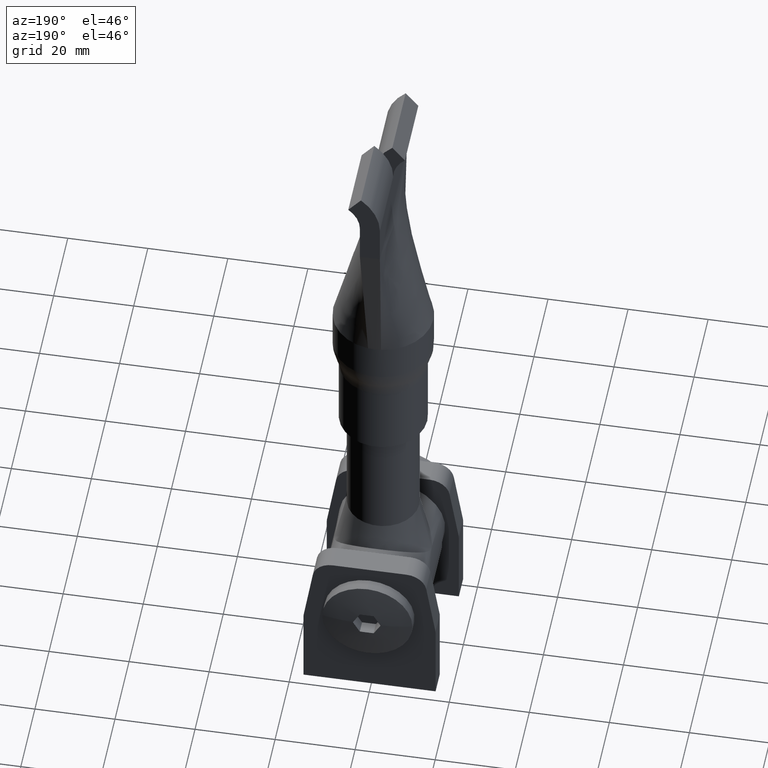
[diagram: clean part render]
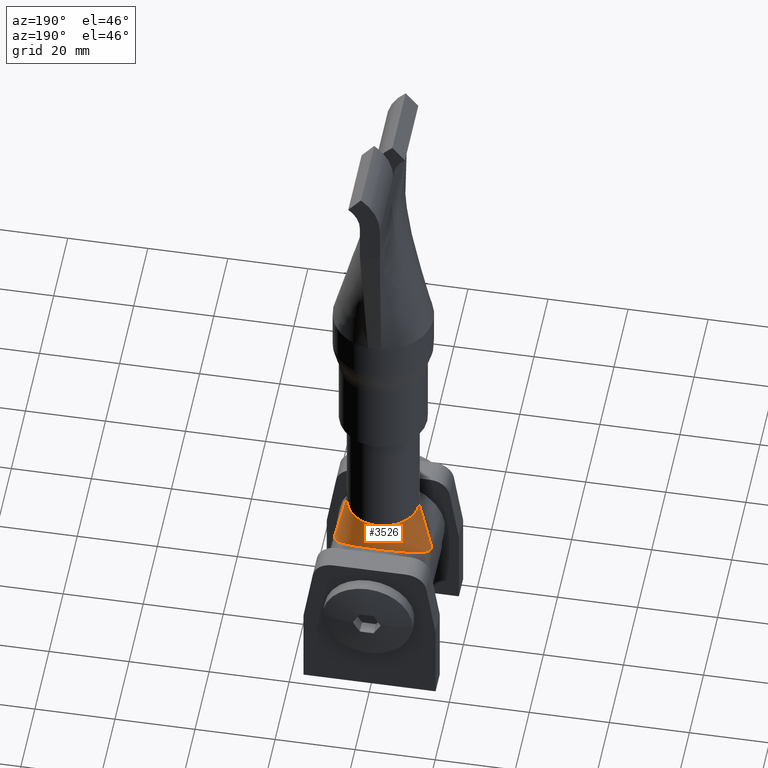
[diagram: same view with one face highlighted and labeled with its STEP entity id]
A machine part, auxiliary view. The second image highlights one B-rep face of the part: STEP entity #3526.
In plain terms, the highlighted conical surface has half-angle 12 deg.
Its self-contained STEP definition (entity closure, byte-faithful):
#330 = DIRECTION ( 'NONE',  ( -0.2079116908177593100, 0.0000000000000000000, -0.9781476007338055800 ) ) ;
#425 = CARTESIAN_POINT ( 'NONE',  ( 1.622657007580528900E-015, 10.43475679127264800, 13.25000000000000200 ) ) ;
#528 = CARTESIAN_POINT ( 'NONE',  ( 3.184539599339078400, 10.03008908591637800, 12.86769795924052000 ) ) ;
#695 = VECTOR ( 'NONE', #330, 1000.000000000000100 ) ;
#742 = CARTESIAN_POINT ( 'NONE',  ( -11.06446719328638700, 3.819138791536556900, 7.295314102514105900 ) ) ;
#1014 = CARTESIAN_POINT ( 'NONE',  ( -4.319565493271661600, 9.673706694231247700, 12.53190537982063200 ) ) ;
#1095 = CARTESIAN_POINT ( 'NONE',  ( 10.20373529351817700, 5.236426510614443900, 8.475830772971216100 ) ) ;
#1224 = CARTESIAN_POINT ( 'NONE',  ( 12.03002631820166400, 1.006849898841623700, 5.554056065950546500 ) ) ;
#1291 = CARTESIAN_POINT ( 'NONE',  ( 11.61282523603928900, 2.595191383297391000, 6.384402714709915800 ) ) ;
#1346 = CARTESIAN_POINT ( 'NONE',  ( -11.21512296835490500, 3.521800369672998700, 7.060842358509260600 ) ) ;
#1517 = VERTEX_POINT ( 'NONE', #6536 ) ;
#1601 = EDGE_CURVE ( 'NONE', #11794, #4962, #12392, .T. ) ;
#1610 = EDGE_CURVE ( 'NONE', #1517, #11786, #17721, .T. ) ;
#1688 = ORIENTED_EDGE ( 'NONE', *, *, #1610, .F. ) ;
#2273 = CARTESIAN_POINT ( 'NONE',  ( 0.8230408785925850100, 10.43475679127264400, 13.24999999999999600 ) ) ;
#2620 = CARTESIAN_POINT ( 'NONE',  ( -7.297235375127309400, 8.123185066940003200, 11.08257604455888800 ) ) ;
#2700 = CARTESIAN_POINT ( 'NONE',  ( 8.890537647187622700, 6.777204848315213900, 9.847001221272721600 ) ) ;
#2845 = ORIENTED_EDGE ( 'NONE', *, *, #11540, .T. ) ;
#2910 = CARTESIAN_POINT ( 'NONE',  ( 9.357436796250286900, 6.285408559409213500, 9.401824175999864900 ) ) ;
#3426 = B_SPLINE_CURVE_WITH_KNOTS ( 'NONE', 3,
 ( #8949, #10408, #7130, #11939, #20162, #16811, #1014, #12147, #16877, #8676, #19890, #2620, #10278, #18486, #8882, #12081, #13771, #742, #1346, #10610, #6090, #9020, #12354, #9296, #17081, #18826, #7488, #15554 ),
 .UNSPECIFIED., .F., .F.,
 ( 4, 2, 2, 2, 2, 2, 2, 2, 2, 2, 2, 2, 2, 4 ),
 ( 0.05222592864754109500, 0.05466654568456969600, 0.05588685420308399400, 0.05710716272159829800, 0.05832747124011258800, 0.05954777975862689300, 0.06198839679565548700, 0.06442901383268408200, 0.06686963086971267600, 0.06808993938822696700, 0.06931024790674125700, 0.07053055642525556100, 0.07114071068451270600, 0.07175086494376985100 ),
 .UNSPECIFIED. ) ;
#3526 = ADVANCED_FACE ( 'NONE', ( #5614 ), #10094, .T. ) ;
#3672 = CARTESIAN_POINT ( 'NONE',  ( 9.000000000000000000, 1.102182119232617700E-015, 19.99999999999999600 ) ) ;
#3757 = CARTESIAN_POINT ( 'NONE',  ( 0.0000000000000000000, 0.0000000000000000000, 19.99999999999999600 ) ) ;
#4560 = CARTESIAN_POINT ( 'NONE',  ( -12.10664305115619000, 3.786254666022218900E-021, 5.384393562128570600 ) ) ;
#4799 = CARTESIAN_POINT ( 'NONE',  ( 5.382153336248416400, 9.247686203966095400, 12.13151881884424700 ) ) ;
#4962 = VERTEX_POINT ( 'NONE', #19730 ) ;
#5064 = B_SPLINE_CURVE_WITH_KNOTS ( 'NONE', 3,
 ( #20384, #9240, #18643, #15497, #1224, #9308, #20244, #1291, #18707, #10623, #14001, #10760, #1095, #2910, #2700, #17091, #9103, #19041, #4799, #18199, #16606, #528, #11805, #13257, #2273, #15060 ),
 .UNSPECIFIED., .F., .F.,
 ( 4, 2, 2, 2, 2, 2, 2, 2, 2, 2, 2, 2, 4 ),
 ( 0.03266425480130214600, 0.03327555710899711400, 0.03388685941669208200, 0.03510946403208201800, 0.03633206864747195300, 0.03755467326286188900, 0.03999988249364176000, 0.04244509172442162400, 0.04489030095520149500, 0.04733551018598136700, 0.04855811480137129500, 0.04978071941676123100, 0.05222592864754109500 ),
 .UNSPECIFIED. ) ;
#5137 = CARTESIAN_POINT ( 'NONE',  ( -9.000000000000000000, 0.0000000000000000000, 19.99999999999999600 ) ) ;
#5281 = DIRECTION ( 'NONE',  ( 0.2079116908177593100, 2.546183866652831100E-017, -0.9781476007338055800 ) ) ;
#5614 = FACE_OUTER_BOUND ( 'NONE', #15380, .T. ) ;
#6090 = CARTESIAN_POINT ( 'NONE',  ( -11.61655651773590700, 2.584838584890881000, 6.377533033917744700 ) ) ;
#6244 = AXIS2_PLACEMENT_3D ( 'NONE', #18279, #18417, #15349 ) ;
#6536 = CARTESIAN_POINT ( 'NONE',  ( -9.000000000000000000, 0.0000000000000000000, 19.99999999999999600 ) ) ;
#6951 = DIRECTION ( 'NONE',  ( 0.0000000000000000000, 0.0000000000000000000, -1.000000000000000000 ) ) ;
#7130 = CARTESIAN_POINT ( 'NONE',  ( -1.627427394574665100, 10.35436528618807600, 13.17390667386182700 ) ) ;
#7204 = EDGE_CURVE ( 'NONE', #11794, #1517, #9879, .T. ) ;
#7488 = CARTESIAN_POINT ( 'NONE',  ( -12.10664305115619400, 0.2041607178623782400, 5.384393562128573200 ) ) ;
#8050 = ORIENTED_EDGE ( 'NONE', *, *, #1601, .T. ) ;
#8676 = CARTESIAN_POINT ( 'NONE',  ( -6.047553059863945500, 8.888231756624463700, 11.79523974101253900 ) ) ;
#8882 = CARTESIAN_POINT ( 'NONE',  ( -9.366277035828115800, 6.275266810331221900, 9.392762597439320500 ) ) ;
#8949 = CARTESIAN_POINT ( 'NONE',  ( 1.622657007580528900E-015, 10.43475679127264800, 13.25000000000000200 ) ) ;
#9020 = CARTESIAN_POINT ( 'NONE',  ( -11.83461110167775000, 1.915977937054852400, 5.963161326051017700 ) ) ;
#9103 = CARTESIAN_POINT ( 'NONE',  ( 7.295562395751274700, 8.124911034194632000, 11.08416145667337300 ) ) ;
#9240 = CARTESIAN_POINT ( 'NONE',  ( 12.10664305115619400, 0.2070309658816545700, 5.384393562128569700 ) ) ;
#9296 = CARTESIAN_POINT ( 'NONE',  ( -12.03089942303414300, 1.001060367101145100, 5.552152774326420300 ) ) ;
#9308 = CARTESIAN_POINT ( 'NONE',  ( 11.92673454348287300, 1.571552621414711700, 5.774235112175426300 ) ) ;
#9799 = AXIS2_PLACEMENT_3D ( 'NONE', #3757, #6951, #14937 ) ;
#9879 = CIRCLE ( 'NONE', #6244, 9.000000000000000000 ) ;
#10090 = ORIENTED_EDGE ( 'NONE', *, *, #13794, .T. ) ;
#10094 = CONICAL_SURFACE ( 'NONE', #9799, 9.000000000000000000, 0.2094395102393195000 ) ;
#10183 = VECTOR ( 'NONE', #5281, 1000.000000000000100 ) ;
#10278 = CARTESIAN_POINT ( 'NONE',  ( -7.859814488633109200, 7.696830599005056500, 10.68787478312199100 ) ) ;
#10408 = CARTESIAN_POINT ( 'NONE',  ( -0.8214951772545705500, 10.43475679127265100, 13.25000000000000200 ) ) ;
#10610 = CARTESIAN_POINT ( 'NONE',  ( -11.49175061079786400, 2.903089775996173100, 6.601071572575723900 ) ) ;
#10623 = CARTESIAN_POINT ( 'NONE',  ( 11.21295659576610700, 3.526054461736720700, 7.064209928580996100 ) ) ;
#10760 = CARTESIAN_POINT ( 'NONE',  ( 10.57680563853330600, 4.687384280959522100, 8.001171380402363200 ) ) ;
#11540 = EDGE_CURVE ( 'NONE', #4962, #19518, #5064, .T. ) ;
#11786 = VERTEX_POINT ( 'NONE', #4560 ) ;
#11794 = VERTEX_POINT ( 'NONE', #13686 ) ;
#11805 = CARTESIAN_POINT ( 'NONE',  ( 2.797924488313847200, 10.12504310329740100, 12.95732587475329100 ) ) ;
#11939 = CARTESIAN_POINT ( 'NONE',  ( -2.805369519048564400, 10.12339040397273300, 12.95576555459581900 ) ) ;
#12081 = CARTESIAN_POINT ( 'NONE',  ( -10.20679839300158400, 5.231802512468667600, 8.471859376096627900 ) ) ;
#12147 = CARTESIAN_POINT ( 'NONE',  ( -5.031655238396221600, 9.387953859221667600, 12.26334962648299000 ) ) ;
#12354 = CARTESIAN_POINT ( 'NONE',  ( -11.92868723471121600, 1.562855525102866000, 5.770154788472544800 ) ) ;
#12392 = LINE ( 'NONE', #3672, #10183 ) ;
#13257 = CARTESIAN_POINT ( 'NONE',  ( 1.624636226973390500, 10.35452249015881100, 13.17405625452674500 ) ) ;
#13309 = ORIENTED_EDGE ( 'NONE', *, *, #7204, .F. ) ;
#13686 = CARTESIAN_POINT ( 'NONE',  ( 9.000000000000000000, 1.293748228990657500E-015, 19.99999999999999600 ) ) ;
#13771 = CARTESIAN_POINT ( 'NONE',  ( -10.57760393098527500, 4.686269550005518700, 8.000185221719105400 ) ) ;
#13794 = EDGE_CURVE ( 'NONE', #19518, #11786, #3426, .T. ) ;
#14001 = CARTESIAN_POINT ( 'NONE',  ( 11.06296032631789200, 3.821975241020573400, 7.297580014072218900 ) ) ;
#14937 = DIRECTION ( 'NONE',  ( -1.000000000000000000, 0.0000000000000000000, 0.0000000000000000000 ) ) ;
#15060 = CARTESIAN_POINT ( 'NONE',  ( 1.622657007580528900E-015, 10.43475679127264800, 13.25000000000000200 ) ) ;
#15349 = DIRECTION ( 'NONE',  ( 1.000000000000000000, 0.0000000000000000000, 0.0000000000000000000 ) ) ;
#15380 = EDGE_LOOP ( 'NONE', ( #13309, #8050, #2845, #10090, #1688 ) ) ;
#15497 = CARTESIAN_POINT ( 'NONE',  ( 12.05827137978807300, 0.8096099179262873400, 5.492062067574451600 ) ) ;
#15554 = CARTESIAN_POINT ( 'NONE',  ( -12.10664305115619000, 3.786254666022218900E-021, 5.384393562128570600 ) ) ;
#16606 = CARTESIAN_POINT ( 'NONE',  ( 3.946418937678246100, 9.804255719160401800, 12.65482993952647900 ) ) ;
#16811 = CARTESIAN_POINT ( 'NONE',  ( -3.952813657271863100, 9.802054703197020700, 12.65275731247150900 ) ) ;
#16877 = CARTESIAN_POINT ( 'NONE',  ( -5.376985240004498400, 9.230539262203196300, 12.11563486939933500 ) ) ;
#17081 = CARTESIAN_POINT ( 'NONE',  ( -12.05864392576899900, 0.8067804075094237000, 5.491242981476048600 ) ) ;
#17091 = CARTESIAN_POINT ( 'NONE',  ( 7.859484058657875100, 7.696969483484479300, 10.68801211823366200 ) ) ;
#17721 = LINE ( 'NONE', #5137, #695 ) ;
#18199 = CARTESIAN_POINT ( 'NONE',  ( 4.314184033334061800, 9.675672551292464600, 12.53375530211281100 ) ) ;
#18279 = CARTESIAN_POINT ( 'NONE',  ( 0.0000000000000000000, 0.0000000000000000000, 19.99999999999999600 ) ) ;
#18417 = DIRECTION ( 'NONE',  ( 0.0000000000000000000, 0.0000000000000000000, 1.000000000000000000 ) ) ;
#18486 = CARTESIAN_POINT ( 'NONE',  ( -8.893365662360228200, 6.774525724067020200, 9.844561867903213000 ) ) ;
#18643 = CARTESIAN_POINT ( 'NONE',  ( 12.09645318755635300, 0.4101087223910180300, 5.407446227561047500 ) ) ;
#18707 = CARTESIAN_POINT ( 'NONE',  ( 11.48781990896234700, 2.912459531914510800, 6.607832569976725500 ) ) ;
#18826 = CARTESIAN_POINT ( 'NONE',  ( -12.09671775895908400, 0.4062540104754608900, 5.406853268785774900 ) ) ;
#19041 = CARTESIAN_POINT ( 'NONE',  ( 6.047877226196089100, 8.906097663483292200, 11.81131012736361900 ) ) ;
#19518 = VERTEX_POINT ( 'NONE', #425 ) ;
#19730 = CARTESIAN_POINT ( 'NONE',  ( 12.10664305115619000, 1.748493259212706100E-015, 5.384393562128566100 ) ) ;
#19890 = CARTESIAN_POINT ( 'NONE',  ( -6.371546678343166900, 8.703777760650467600, 11.62297517426386600 ) ) ;
#20162 = CARTESIAN_POINT ( 'NONE',  ( -3.195819190907471400, 10.02704409982447900, 12.86482580979795600 ) ) ;
#20244 = CARTESIAN_POINT ( 'NONE',  ( 11.83303006085650800, 1.921894070696874100, 5.966381446509474000 ) ) ;
#20384 = CARTESIAN_POINT ( 'NONE',  ( 12.10664305115619000, 1.748493259212706100E-015, 5.384393562128566100 ) ) ;